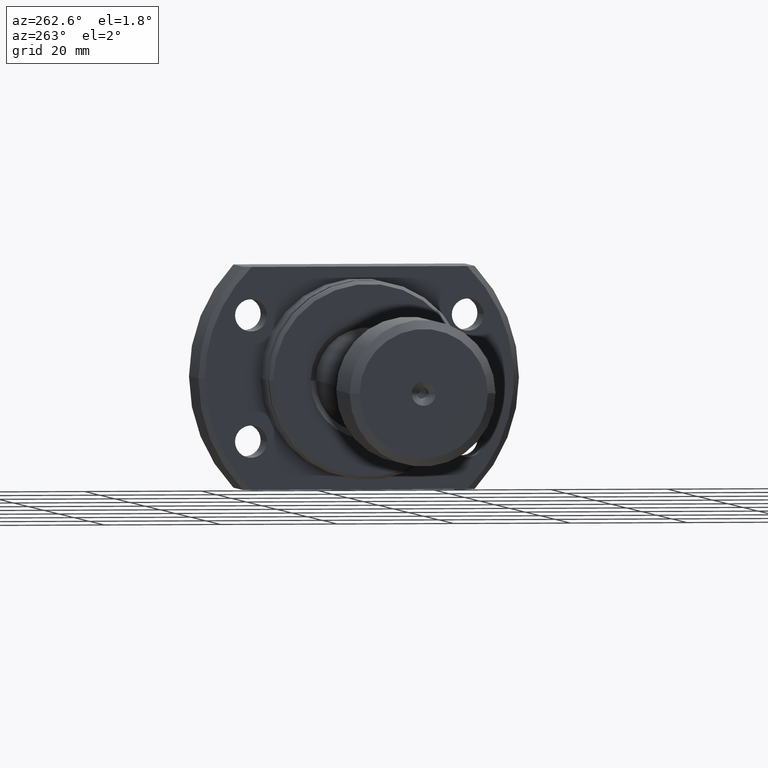
[diagram: clean part render]
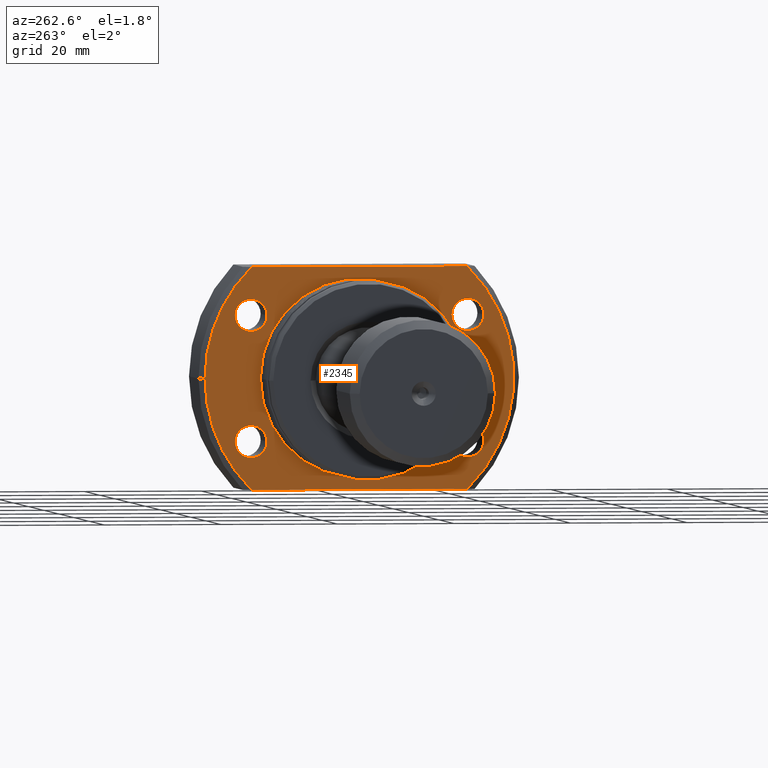
[diagram: same view with one face highlighted and labeled with its STEP entity id]
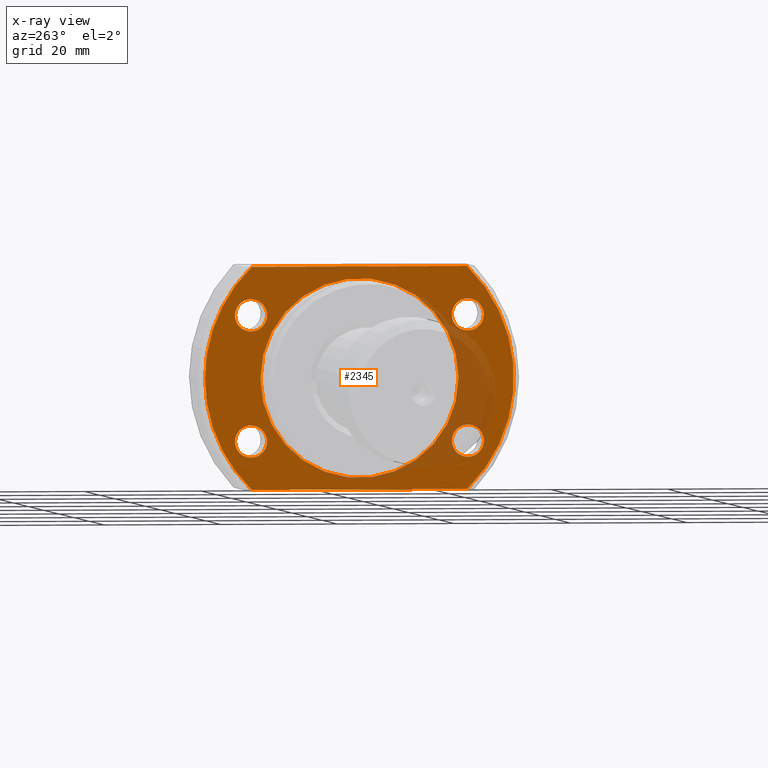
[diagram: x-ray of the same camera — body ghosted, the highlighted face saturated]
A machine part, auxiliary view. The second image highlights one B-rep face of the part: STEP entity #2345.
The next image is the same camera in x-ray: the body ghosted, the highlighted face saturated — about 16% of this face is hidden behind the body in this view.
In plain terms, the highlighted planar face has unit normal (1, 0, 0).
Its self-contained STEP definition (entity closure, byte-faithful):
#14 = EDGE_LOOP ( 'NONE', ( #2560, #1134 ) ) ;
#43 = DIRECTION ( 'NONE',  ( 1.000000000000000000, 9.242617352055502386E-18, -0.000000000000000000 ) ) ;
#53 = PLANE ( 'NONE',  #2998 ) ;
#58 = DIRECTION ( 'NONE',  ( 0.000000000000000000, 1.000000000000000000, 0.000000000000000000 ) ) ;
#87 = VECTOR ( 'NONE', #3063, 1000.000000000000000 ) ;
#128 = AXIS2_PLACEMENT_3D ( 'NONE', #969, #471, #2183 ) ;
#149 = ORIENTED_EDGE ( 'NONE', *, *, #2023, .T. ) ;
#168 = VECTOR ( 'NONE', #1218, 1000.000000000000000 ) ;
#211 = CARTESIAN_POINT ( 'NONE',  ( 12.50000000000000355, -18.60000000000036380, -10.75000000000000000 ) ) ;
#259 = DIRECTION ( 'NONE',  ( 1.000000000000000000, 9.242617352055502386E-18, -0.000000000000000000 ) ) ;
#271 = EDGE_LOOP ( 'NONE', ( #973, #2526 ) ) ;
#289 = CIRCLE ( 'NONE', #393, 2.749999999999999112 ) ;
#296 = EDGE_CURVE ( 'NONE', #2979, #404, #740, .T. ) ;
#318 = FACE_BOUND ( 'NONE', #271, .T. ) ;
#393 = AXIS2_PLACEMENT_3D ( 'NONE', #2788, #2019, #1029 ) ;
#404 = VERTEX_POINT ( 'NONE', #2548 ) ;
#405 = DIRECTION ( 'NONE',  ( 1.000000000000000000, 9.242617352055502386E-18, -0.000000000000000000 ) ) ;
#419 = CARTESIAN_POINT ( 'NONE',  ( 12.50000000000000355, 18.59999999999964260, 10.75000000000000000 ) ) ;
#453 = ORIENTED_EDGE ( 'NONE', *, *, #2709, .T. ) ;
#471 = DIRECTION ( 'NONE',  ( 1.000000000000000000, 9.242617352055502386E-18, -0.000000000000000000 ) ) ;
#492 = CARTESIAN_POINT ( 'NONE',  ( 12.50000000000000355, -18.60000000000036380, 10.75000000000000000 ) ) ;
#509 = VERTEX_POINT ( 'NONE', #1605 ) ;
#514 = EDGE_CURVE ( 'NONE', #2716, #2077, #1733, .T. ) ;
#534 = FACE_BOUND ( 'NONE', #14, .T. ) ;
#553 = CARTESIAN_POINT ( 'NONE',  ( 12.50000000000000355, -16.99999999999999645, 0.000000000000000000 ) ) ;
#627 = EDGE_LOOP ( 'NONE', ( #718, #3012, #1807, #2867, #1631 ) ) ;
#634 = DIRECTION ( 'NONE',  ( 0.000000000000000000, 1.000000000000000000, 0.000000000000000000 ) ) ;
#665 = DIRECTION ( 'NONE',  ( 1.000000000000000000, 9.242617352055502386E-18, -0.000000000000000000 ) ) ;
#701 = AXIS2_PLACEMENT_3D ( 'NONE', #2748, #1709, #2734 ) ;
#703 = DIRECTION ( 'NONE',  ( 1.000000000000000000, 9.242617352055502386E-18, -0.000000000000000000 ) ) ;
#718 = ORIENTED_EDGE ( 'NONE', *, *, #2269, .F. ) ;
#733 = CARTESIAN_POINT ( 'NONE',  ( 12.50000000000000355, -15.85000000000036380, -10.75000000000000000 ) ) ;
#740 = LINE ( 'NONE', #1480, #168 ) ;
#753 = ORIENTED_EDGE ( 'NONE', *, *, #1829, .T. ) ;
#782 = CARTESIAN_POINT ( 'NONE',  ( 12.50000000000000355, 18.59999999999964260, 10.75000000000000000 ) ) ;
#809 = CARTESIAN_POINT ( 'NONE',  ( 12.50000000000000355, -18.47295320191106072, 19.00000000000001066 ) ) ;
#825 = DIRECTION ( 'NONE',  ( 0.000000000000000000, 1.000000000000000000, 0.000000000000000000 ) ) ;
#833 = EDGE_CURVE ( 'NONE', #1328, #3218, #1581, .T. ) ;
#863 = VERTEX_POINT ( 'NONE', #733 ) ;
#876 = CARTESIAN_POINT ( 'NONE',  ( 12.50000000000000355, 18.47295320191106072, 19.00000000000001066 ) ) ;
#948 = AXIS2_PLACEMENT_3D ( 'NONE', #1114, #1875, #634 ) ;
#969 = CARTESIAN_POINT ( 'NONE',  ( 12.50000000000000355, 1.155327169006938207E-16, 0.000000000000000000 ) ) ;
#973 = ORIENTED_EDGE ( 'NONE', *, *, #2810, .T. ) ;
#998 = DIRECTION ( 'NONE',  ( 1.000000000000000000, 9.242617352055502386E-18, -0.000000000000000000 ) ) ;
#1025 = CARTESIAN_POINT ( 'NONE',  ( 12.50000000000000355, -21.35000000000036025, -10.75000000000000000 ) ) ;
#1029 = DIRECTION ( 'NONE',  ( 0.000000000000000000, 1.000000000000000000, 0.000000000000000000 ) ) ;
#1069 = CARTESIAN_POINT ( 'NONE',  ( 12.50000000000000355, -15.85000000000036380, 10.75000000000000000 ) ) ;
#1091 = DIRECTION ( 'NONE',  ( 1.000000000000000000, 9.242617352055502386E-18, -0.000000000000000000 ) ) ;
#1112 = EDGE_CURVE ( 'NONE', #2979, #1328, #2148, .T. ) ;
#1114 = CARTESIAN_POINT ( 'NONE',  ( 12.50000000000000178, 1.155327169006937960E-16, 0.000000000000000000 ) ) ;
#1127 = DIRECTION ( 'NONE',  ( 0.000000000000000000, 1.000000000000000000, 0.000000000000000000 ) ) ;
#1134 = ORIENTED_EDGE ( 'NONE', *, *, #2992, .T. ) ;
#1205 = DIRECTION ( 'NONE',  ( 0.000000000000000000, 1.000000000000000000, 0.000000000000000000 ) ) ;
#1218 = DIRECTION ( 'NONE',  ( 9.242617352055502386E-18, -1.000000000000000000, 0.000000000000000000 ) ) ;
#1277 = AXIS2_PLACEMENT_3D ( 'NONE', #492, #998, #1944 ) ;
#1292 = FACE_OUTER_BOUND ( 'NONE', #627, .T. ) ;
#1328 = VERTEX_POINT ( 'NONE', #1740 ) ;
#1340 = EDGE_CURVE ( 'NONE', #1428, #863, #2205, .T. ) ;
#1395 = VERTEX_POINT ( 'NONE', #1805 ) ;
#1409 = VERTEX_POINT ( 'NONE', #1069 ) ;
#1424 = CIRCLE ( 'NONE', #2612, 2.749999999999999112 ) ;
#1428 = VERTEX_POINT ( 'NONE', #1025 ) ;
#1430 = DIRECTION ( 'NONE',  ( 0.000000000000000000, 1.000000000000000000, 0.000000000000000000 ) ) ;
#1480 = CARTESIAN_POINT ( 'NONE',  ( 12.50000000000000355, -16.99999999999999645, -19.00000000000001066 ) ) ;
#1515 = LINE ( 'NONE', #2265, #87 ) ;
#1548 = DIRECTION ( 'NONE',  ( -9.242617352055502386E-18, 1.000000000000000000, 0.000000000000000000 ) ) ;
#1556 = EDGE_CURVE ( 'NONE', #3073, #404, #1950, .T. ) ;
#1562 = FACE_BOUND ( 'NONE', #2489, .T. ) ;
#1581 = CIRCLE ( 'NONE', #128, 26.49999999999993250 ) ;
#1586 = CIRCLE ( 'NONE', #1277, 2.749999999999999112 ) ;
#1591 = CARTESIAN_POINT ( 'NONE',  ( 12.50000000000000178, 1.155327169006937960E-16, 0.000000000000000000 ) ) ;
#1605 = CARTESIAN_POINT ( 'NONE',  ( 12.50000000000000355, 15.84999999999964260, -10.75000000000000000 ) ) ;
#1631 = ORIENTED_EDGE ( 'NONE', *, *, #1556, .F. ) ;
#1663 = DIRECTION ( 'NONE',  ( 0.000000000000000000, 1.000000000000000000, 0.000000000000000000 ) ) ;
#1709 = DIRECTION ( 'NONE',  ( 1.000000000000000000, 9.242617352055502386E-18, -0.000000000000000000 ) ) ;
#1718 = EDGE_CURVE ( 'NONE', #2935, #1409, #1586, .T. ) ;
#1733 = CIRCLE ( 'NONE', #3197, 16.99999999999999645 ) ;
#1740 = CARTESIAN_POINT ( 'NONE',  ( 12.50000000000000355, 26.49999999999993250, 0.000000000000000000 ) ) ;
#1742 = EDGE_LOOP ( 'NONE', ( #753, #2640 ) ) ;
#1798 = AXIS2_PLACEMENT_3D ( 'NONE', #2118, #2844, #1430 ) ;
#1803 = CIRCLE ( 'NONE', #2101, 2.749999999999999112 ) ;
#1805 = CARTESIAN_POINT ( 'NONE',  ( 12.50000000000000355, 21.34999999999963904, 10.75000000000000000 ) ) ;
#1807 = ORIENTED_EDGE ( 'NONE', *, *, #1112, .F. ) ;
#1827 = VERTEX_POINT ( 'NONE', #2008 ) ;
#1829 = EDGE_CURVE ( 'NONE', #1395, #3178, #1803, .T. ) ;
#1875 = DIRECTION ( 'NONE',  ( 1.000000000000000000, 9.242617352055502386E-18, -0.000000000000000000 ) ) ;
#1881 = CIRCLE ( 'NONE', #2293, 2.749999999999999112 ) ;
#1891 = CARTESIAN_POINT ( 'NONE',  ( 12.50000000000000178, 16.99999999999999645, 0.000000000000000000 ) ) ;
#1944 = DIRECTION ( 'NONE',  ( 0.000000000000000000, 1.000000000000000000, 0.000000000000000000 ) ) ;
#1950 = CIRCLE ( 'NONE', #1798, 26.49999999999993250 ) ;
#1983 = DIRECTION ( 'NONE',  ( 0.000000000000000000, 1.000000000000000000, 0.000000000000000000 ) ) ;
#2008 = CARTESIAN_POINT ( 'NONE',  ( 12.50000000000000355, 21.34999999999963904, -10.75000000000000000 ) ) ;
#2016 = ORIENTED_EDGE ( 'NONE', *, *, #1718, .T. ) ;
#2018 = DIRECTION ( 'NONE',  ( 1.000000000000000000, 9.242617352055502386E-18, -0.000000000000000000 ) ) ;
#2019 = DIRECTION ( 'NONE',  ( 1.000000000000000000, 9.242617352055502386E-18, -0.000000000000000000 ) ) ;
#2023 = EDGE_CURVE ( 'NONE', #1409, #2935, #2945, .T. ) ;
#2032 = FACE_BOUND ( 'NONE', #2442, .T. ) ;
#2046 = CARTESIAN_POINT ( 'NONE',  ( 12.50000000000000355, 15.84999999999964260, 10.75000000000000000 ) ) ;
#2073 = ORIENTED_EDGE ( 'NONE', *, *, #514, .T. ) ;
#2077 = VERTEX_POINT ( 'NONE', #2655 ) ;
#2101 = AXIS2_PLACEMENT_3D ( 'NONE', #782, #43, #825 ) ;
#2118 = CARTESIAN_POINT ( 'NONE',  ( 12.50000000000000355, 1.155327169006938207E-16, 0.000000000000000000 ) ) ;
#2144 = CARTESIAN_POINT ( 'NONE',  ( 12.50000000000000355, -18.60000000000036380, 10.75000000000000000 ) ) ;
#2148 = CIRCLE ( 'NONE', #2412, 26.49999999999993250 ) ;
#2183 = DIRECTION ( 'NONE',  ( 0.000000000000000000, 1.000000000000000000, 0.000000000000000000 ) ) ;
#2205 = CIRCLE ( 'NONE', #701, 2.749999999999999112 ) ;
#2216 = CARTESIAN_POINT ( 'NONE',  ( 12.50000000000000355, 18.59999999999964260, -10.75000000000000000 ) ) ;
#2265 = CARTESIAN_POINT ( 'NONE',  ( 12.50000000000000355, -16.99999999999999645, 19.00000000000001066 ) ) ;
#2269 = EDGE_CURVE ( 'NONE', #3218, #3073, #1515, .T. ) ;
#2293 = AXIS2_PLACEMENT_3D ( 'NONE', #211, #405, #1205 ) ;
#2324 = EDGE_CURVE ( 'NONE', #1827, #509, #289, .T. ) ;
#2345 = ADVANCED_FACE ( 'NONE', ( #2770, #1562, #318, #534, #2032, #1292 ), #53, .F. ) ;
#2346 = CIRCLE ( 'NONE', #948, 16.99999999999999645 ) ;
#2412 = AXIS2_PLACEMENT_3D ( 'NONE', #3125, #665, #1663 ) ;
#2442 = EDGE_LOOP ( 'NONE', ( #2073, #453 ) ) ;
#2489 = EDGE_LOOP ( 'NONE', ( #149, #2016 ) ) ;
#2490 = CARTESIAN_POINT ( 'NONE',  ( 12.50000000000000355, 18.47295320191106072, -19.00000000000001066 ) ) ;
#2526 = ORIENTED_EDGE ( 'NONE', *, *, #1340, .T. ) ;
#2548 = CARTESIAN_POINT ( 'NONE',  ( 12.50000000000000355, -18.47295320191106072, -19.00000000000001066 ) ) ;
#2560 = ORIENTED_EDGE ( 'NONE', *, *, #2324, .T. ) ;
#2608 = AXIS2_PLACEMENT_3D ( 'NONE', #419, #703, #2689 ) ;
#2612 = AXIS2_PLACEMENT_3D ( 'NONE', #2216, #2018, #1983 ) ;
#2640 = ORIENTED_EDGE ( 'NONE', *, *, #2745, .T. ) ;
#2655 = CARTESIAN_POINT ( 'NONE',  ( 12.50000000000000178, -16.99999999999999645, 2.081899558550499885E-15 ) ) ;
#2680 = AXIS2_PLACEMENT_3D ( 'NONE', #2144, #1091, #1127 ) ;
#2689 = DIRECTION ( 'NONE',  ( 0.000000000000000000, 1.000000000000000000, 0.000000000000000000 ) ) ;
#2709 = EDGE_CURVE ( 'NONE', #2077, #2716, #2346, .T. ) ;
#2716 = VERTEX_POINT ( 'NONE', #1891 ) ;
#2734 = DIRECTION ( 'NONE',  ( 0.000000000000000000, 1.000000000000000000, 0.000000000000000000 ) ) ;
#2745 = EDGE_CURVE ( 'NONE', #3178, #1395, #3185, .T. ) ;
#2748 = CARTESIAN_POINT ( 'NONE',  ( 12.50000000000000355, -18.60000000000036380, -10.75000000000000000 ) ) ;
#2770 = FACE_BOUND ( 'NONE', #1742, .T. ) ;
#2788 = CARTESIAN_POINT ( 'NONE',  ( 12.50000000000000355, 18.59999999999964260, -10.75000000000000000 ) ) ;
#2810 = EDGE_CURVE ( 'NONE', #863, #1428, #1881, .T. ) ;
#2844 = DIRECTION ( 'NONE',  ( 1.000000000000000000, 9.242617352055502386E-18, -0.000000000000000000 ) ) ;
#2867 = ORIENTED_EDGE ( 'NONE', *, *, #296, .T. ) ;
#2935 = VERTEX_POINT ( 'NONE', #2955 ) ;
#2945 = CIRCLE ( 'NONE', #2680, 2.749999999999999112 ) ;
#2955 = CARTESIAN_POINT ( 'NONE',  ( 12.50000000000000355, -21.35000000000036025, 10.75000000000000000 ) ) ;
#2979 = VERTEX_POINT ( 'NONE', #2490 ) ;
#2992 = EDGE_CURVE ( 'NONE', #509, #1827, #1424, .T. ) ;
#2998 = AXIS2_PLACEMENT_3D ( 'NONE', #553, #259, #1548 ) ;
#3012 = ORIENTED_EDGE ( 'NONE', *, *, #833, .F. ) ;
#3063 = DIRECTION ( 'NONE',  ( 9.242617352055502386E-18, -1.000000000000000000, 0.000000000000000000 ) ) ;
#3073 = VERTEX_POINT ( 'NONE', #809 ) ;
#3088 = DIRECTION ( 'NONE',  ( 1.000000000000000000, 9.242617352055502386E-18, -0.000000000000000000 ) ) ;
#3125 = CARTESIAN_POINT ( 'NONE',  ( 12.50000000000000355, 1.155327169006938207E-16, 0.000000000000000000 ) ) ;
#3178 = VERTEX_POINT ( 'NONE', #2046 ) ;
#3185 = CIRCLE ( 'NONE', #2608, 2.749999999999999112 ) ;
#3197 = AXIS2_PLACEMENT_3D ( 'NONE', #1591, #3088, #58 ) ;
#3218 = VERTEX_POINT ( 'NONE', #876 ) ;